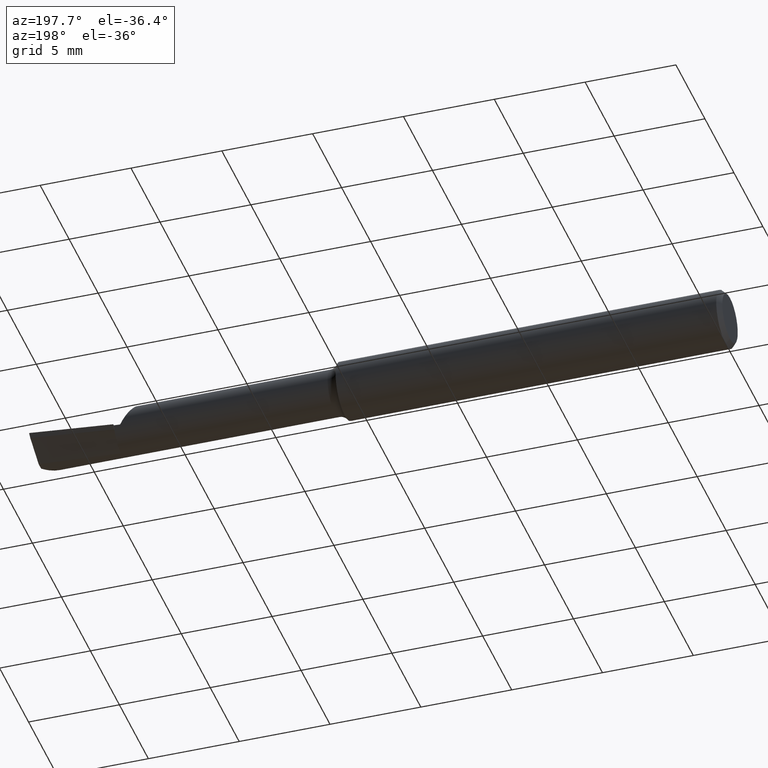
[diagram: clean part render]
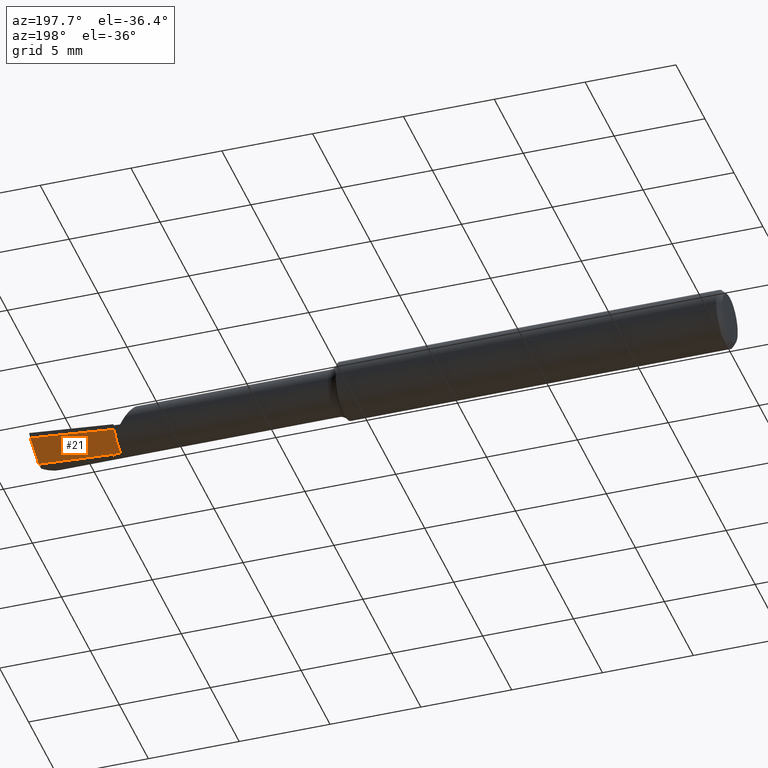
[diagram: same view with one face highlighted and labeled with its STEP entity id]
A machine part, auxiliary view. The second image highlights one B-rep face of the part: STEP entity #21.
In plain terms, the highlighted face is a freeform B-spline surface patch.
Its self-contained STEP definition (entity closure, byte-faithful):
#3 = EDGE_CURVE ( 'NONE', #497, #549, #453, .T. ) ;
#5 = B_SPLINE_CURVE_WITH_KNOTS ( 'NONE', 3,
 ( #606, #490, #171, #282, #118, #337, #548, #330, #496, #267 ),
 .UNSPECIFIED., .F., .F.,
 ( 4, 3, 3, 4 ),
 ( 0.000000000000000000, 0.001303478510763432258, 0.002606928754740228324, 0.004423834852725537503 ),
 .UNSPECIFIED. ) ;
#21 = ADVANCED_FACE ( 'NONE', ( #576 ), #639, .T. ) ;
#36 = VERTEX_POINT ( 'NONE', #89 ) ;
#48 = CARTESIAN_POINT ( 'NONE',  ( 1.379574988136203162, 0.05025777055091223272, -0.01830322063574537500 ) ) ;
#49 = CARTESIAN_POINT ( 'NONE',  ( 1.320000000000000062, -0.04051069901894399639, -0.07496423284839377754 ) ) ;
#51 = CARTESIAN_POINT ( 'NONE',  ( 1.439999788736140651, -0.02452506910399407034, -0.08108234230191842251 ) ) ;
#63 = VERTEX_POINT ( 'NONE', #420 ) ;
#67 = CARTESIAN_POINT ( 'NONE',  ( 1.320000000000000062, 0.04673003679680187011, -0.02150304118259648706 ) ) ;
#73 = ORIENTED_EDGE ( 'NONE', *, *, #584, .F. ) ;
#80 = EDGE_LOOP ( 'NONE', ( #277, #648, #301, #213, #73 ) ) ;
#89 = CARTESIAN_POINT ( 'NONE',  ( 1.320000000000000062, 0.04673003679680187011, -0.02150304118259648706 ) ) ;
#95 = VECTOR ( 'NONE', #279, 39.37007874015748854 ) ;
#118 = CARTESIAN_POINT ( 'NONE',  ( 1.388088441632869374, 0.006991100374559138138, -0.05000000000000003053 ) ) ;
#120 = CARTESIAN_POINT ( 'NONE',  ( 1.320000000000000062, 0.0002276509060372900926, -0.04999973990684460773 ) ) ;
#136 = CARTESIAN_POINT ( 'NONE',  ( 1.493471848072225105, 0.01571052489207363026, -0.04999999999999999584 ) ) ;
#150 = CARTESIAN_POINT ( 'NONE',  ( 1.380000042088465939, 0.05028294012662892082, -0.01828039064598065491 ) ) ;
#153 = CARTESIAN_POINT ( 'NONE',  ( 1.380000243912397950, -0.03275893449063330132, -0.07859347070020093751 ) ) ;
#159 = DIRECTION ( 'NONE',  ( 0.000000000000000000, -0.8526401643540895137, -0.5224985647159531288 ) ) ;
#171 = CARTESIAN_POINT ( 'NONE',  ( 1.354028568218777373, 0.003770513295725831052, -0.05000000000000003053 ) ) ;
#174 = EDGE_CURVE ( 'NONE', #625, #497, #5, .T. ) ;
#195 = CARTESIAN_POINT ( 'NONE',  ( 1.439999865074238938, 0.05350731005932336110, -0.01441471241017548872 ) ) ;
#210 = CARTESIAN_POINT ( 'NONE',  ( 1.498724836220111323, 0.05615222537926604224, -0.01009374182364030509 ) ) ;
#212 = CARTESIAN_POINT ( 'NONE',  ( 1.320000000000000062, 0.04673003679680187011, -0.02150304118259648706 ) ) ;
#213 = ORIENTED_EDGE ( 'NONE', *, *, #257, .F. ) ;
#215 = CARTESIAN_POINT ( 'NONE',  ( 1.498724836220111323, 0.05615222537926604224, -0.01009374182364030509 ) ) ;
#234 = CARTESIAN_POINT ( 'NONE',  ( 1.498724836220111323, 0.05615222537926604224, -0.01009374182364030509 ) ) ;
#257 = EDGE_CURVE ( 'NONE', #36, #63, #653, .T. ) ;
#267 = CARTESIAN_POINT ( 'NONE',  ( 1.493471848072225105, 0.01571052489207363026, -0.04999999999999999584 ) ) ;
#277 = ORIENTED_EDGE ( 'NONE', *, *, #3, .F. ) ;
#279 = DIRECTION ( 'NONE',  ( 0.000000000000000000, -0.8526401643540895137, -0.5224985647159531288 ) ) ;
#282 = CARTESIAN_POINT ( 'NONE',  ( 1.371058622342655076, 0.005380817937683201463, -0.05000000000000003053 ) ) ;
#301 = ORIENTED_EDGE ( 'NONE', *, *, #610, .F. ) ;
#330 = CARTESIAN_POINT ( 'NONE',  ( 1.445929105187844455, 0.01198547012496488547, -0.05000000000000000278 ) ) ;
#337 = CARTESIAN_POINT ( 'NONE',  ( 1.405127195350175606, 0.008508104757740990454, -0.05000000000000000278 ) ) ;
#354 = CARTESIAN_POINT ( 'NONE',  ( 1.495198500458943869, 0.02913189798354566887, -0.03689196312197288996 ) ) ;
#359 = CARTESIAN_POINT ( 'NONE',  ( 1.496949392553824643, 0.04261354698978679634, -0.02359080110587262469 ) ) ;
#393 = CARTESIAN_POINT ( 'NONE',  ( 1.320000000000000062, 0.04673003679680187011, -0.02150304118259648706 ) ) ;
#420 = CARTESIAN_POINT ( 'NONE',  ( 1.320000000000000062, 0.04444631868266780972, -0.02290250544282729228 ) ) ;
#438 = CARTESIAN_POINT ( 'NONE',  ( 1.439149760263061850, 0.05346160923071888865, -0.01446945082766379516 ) ) ;
#451 = LINE ( 'NONE', #67, #95 ) ;
#453 = B_SPLINE_CURVE_WITH_KNOTS ( 'NONE', 3,
 ( #136, #672, #354, #512, #359, #566, #234 ),
 .UNSPECIFIED., .F., .F.,
 ( 4, 3, 4 ),
 ( 1.367030416239805198E-05, 0.0007314607306379512569, 0.001462956282710083924 ),
 .UNSPECIFIED. ) ;
#474 = CARTESIAN_POINT ( 'NONE',  ( 1.320000000000000062, 0.04673003679680187011, -0.02150304118259648706 ) ) ;
#490 = CARTESIAN_POINT ( 'NONE',  ( 1.337006749007716211, 0.002067420128333479195, -0.04999999999999999584 ) ) ;
#496 = CARTESIAN_POINT ( 'NONE',  ( 1.469697752010180603, 0.01388552377437377722, -0.04999999999999998196 ) ) ;
#497 = VERTEX_POINT ( 'NONE', #537 ) ;
#511 = VECTOR ( 'NONE', #159, 39.37007874015748854 ) ;
#512 = CARTESIAN_POINT ( 'NONE',  ( 1.496065667911644415, 0.03580897834796484963, -0.03030427287128124869 ) ) ;
#525 = CARTESIAN_POINT ( 'NONE',  ( 1.500000000000000222, -0.01614026225835066275, -0.08234999999999999265 ) ) ;
#537 = CARTESIAN_POINT ( 'NONE',  ( 1.493471848072225105, 0.01571052489207363026, -0.04999999999999999584 ) ) ;
#548 = CARTESIAN_POINT ( 'NONE',  ( 1.422171190029624110, 0.009960688645437953612, -0.05000000000000000278 ) ) ;
#549 = VERTEX_POINT ( 'NONE', #210 ) ;
#566 = CARTESIAN_POINT ( 'NONE',  ( 1.497835784801183401, 0.04939478087129869910, -0.01685394582060163390 ) ) ;
#576 = FACE_OUTER_BOUND ( 'NONE', #80, .T. ) ;
#584 = EDGE_CURVE ( 'NONE', #549, #36, #679, .T. ) ;
#606 = CARTESIAN_POINT ( 'NONE',  ( 1.320000000000000062, 0.0002276509060372900926, -0.04999973990684460773 ) ) ;
#610 = EDGE_CURVE ( 'NONE', #63, #625, #451, .T. ) ;
#625 = VERTEX_POINT ( 'NONE', #120 ) ;
#639 = B_SPLINE_SURFACE_WITH_KNOTS ( 'NONE', 1, 3, ( 
 ( #644, #195, #150, #474 ),
 ( #525, #51, #153, #49 ) ),
 .UNSPECIFIED., .F., .F., .F.,
 ( 2, 2 ),
 ( 4, 4 ),
 ( 0.000000000000000000, 1.000000000000000000 ),
 ( 0.000000000000000000, 1.000000000000000000 ),
 .UNSPECIFIED. ) ;
#644 = CARTESIAN_POINT ( 'NONE',  ( 1.500000000000000222, 0.05620973774164850917, -0.01000000000000000021 ) ) ;
#648 = ORIENTED_EDGE ( 'NONE', *, *, #174, .F. ) ;
#653 = LINE ( 'NONE', #212, #511 ) ;
#672 = CARTESIAN_POINT ( 'NONE',  ( 1.494333891535405190, 0.02243227168331323601, -0.04345721423512603765 ) ) ;
#679 = B_SPLINE_CURVE_WITH_KNOTS ( 'NONE', 3,
 ( #215, #438, #48, #393 ),
 .UNSPECIFIED., .F., .F.,
 ( 4, 4 ),
 ( 0.007084227568318293700, 1.000000000000000000 ),
 .UNSPECIFIED. ) ;